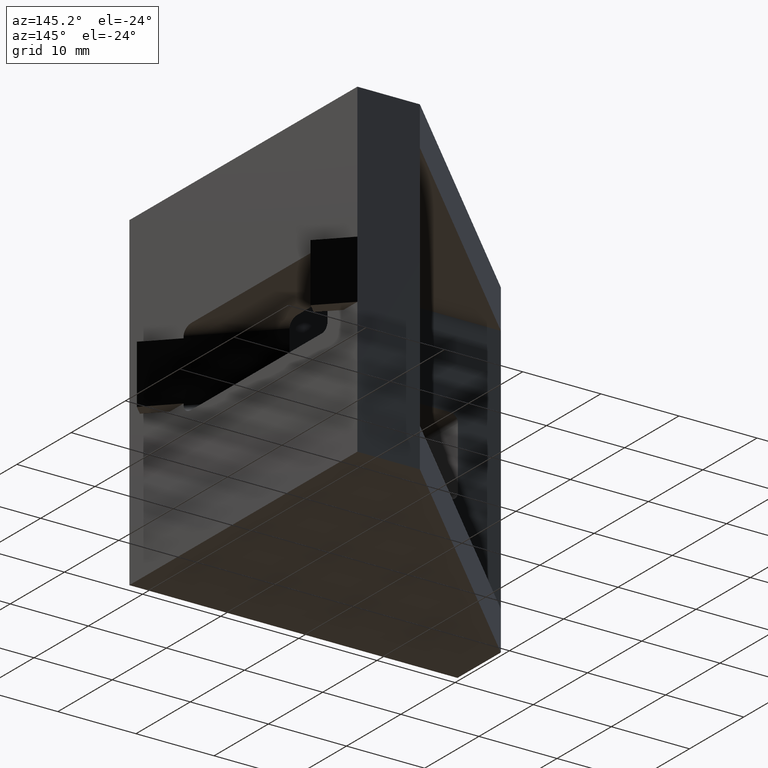
[diagram: clean part render]
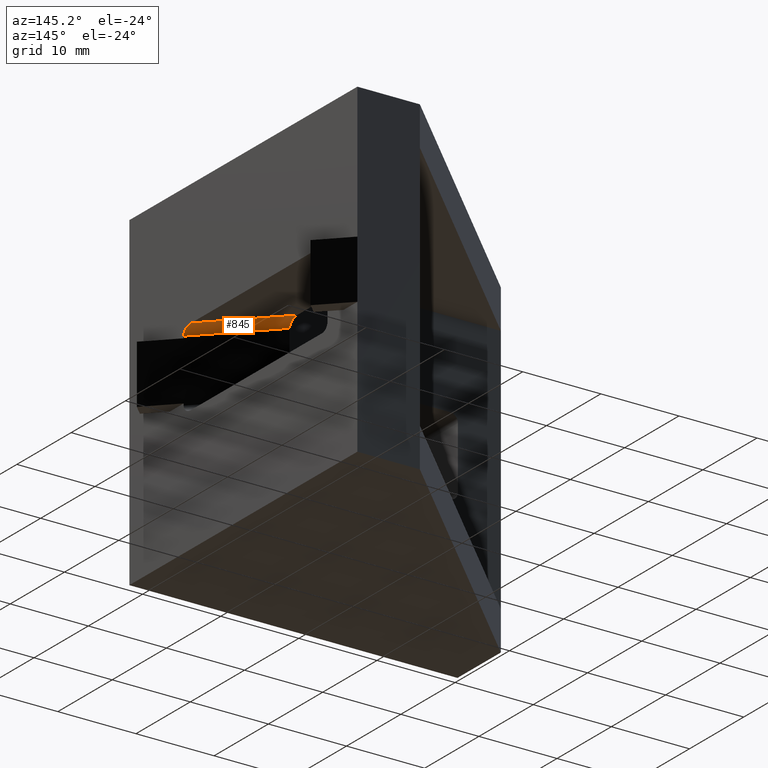
[diagram: same view with one face highlighted and labeled with its STEP entity id]
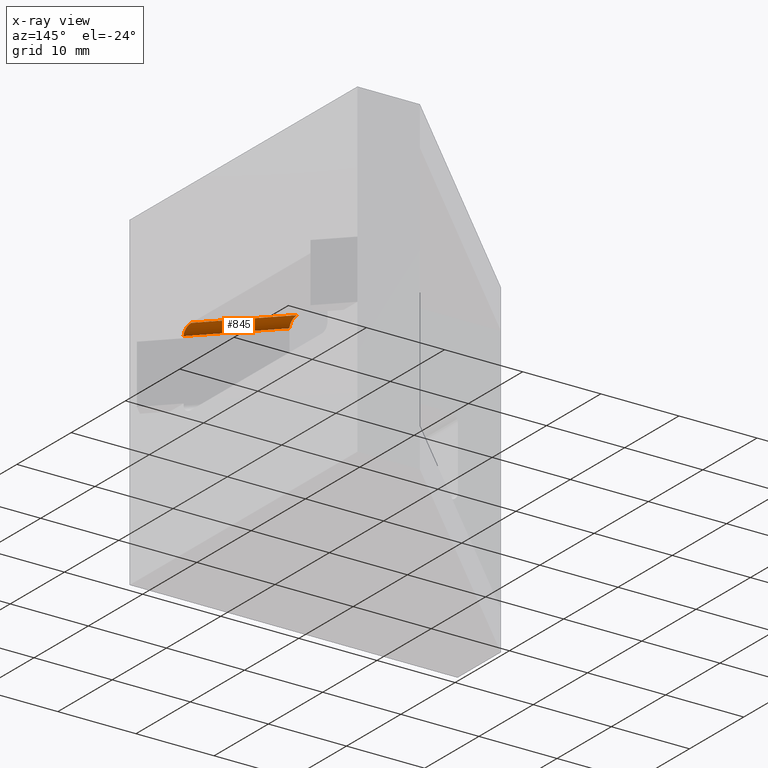
[diagram: x-ray of the same camera — body ghosted, the highlighted face saturated]
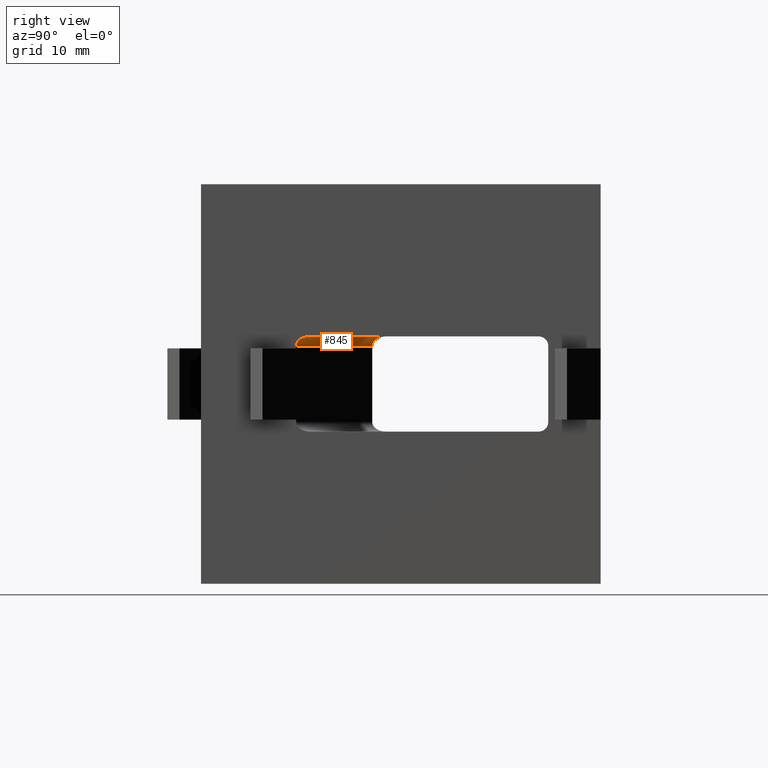
[diagram: same view with one face highlighted and labeled with its STEP entity id]
A machine part, auxiliary view. The second image highlights one B-rep face of the part: STEP entity #845.
The next image is the same camera in x-ray: the body ghosted, the highlighted face saturated — about 0% of this face is hidden behind the body in this view.
A second angle (right view) of the same face is appended — the face is thin or edge-on in the first view.
In plain terms, the highlighted cylindrical surface (edge-blend (fillet) strip) has radius 1 mm, axis along (0.7071, -0.7071, 0).
Its self-contained STEP definition (entity closure, byte-faithful):
#65=FACE_OUTER_BOUND('',#111,.T.);
#111=EDGE_LOOP('',(#589,#590,#591,#592));
#161=LINE('',#1195,#269);
#162=LINE('',#1198,#270);
#269=VECTOR('',#961,11.3137084989847);
#270=VECTOR('',#964,11.3137084989847);
#377=ELLIPSE('',#894,1.41421356237309,1.);
#378=ELLIPSE('',#895,1.41421356237309,1.);
#385=VERTEX_POINT('',#1191);
#386=VERTEX_POINT('',#1192);
#387=VERTEX_POINT('',#1194);
#388=VERTEX_POINT('',#1196);
#465=EDGE_CURVE('',#385,#386,#377,.T.);
#466=EDGE_CURVE('',#386,#387,#161,.T.);
#467=EDGE_CURVE('',#387,#388,#378,.T.);
#468=EDGE_CURVE('',#388,#385,#162,.T.);
#589=ORIENTED_EDGE('',*,*,#465,.T.);
#590=ORIENTED_EDGE('',*,*,#466,.T.);
#591=ORIENTED_EDGE('',*,*,#467,.T.);
#592=ORIENTED_EDGE('',*,*,#468,.T.);
#837=CYLINDRICAL_SURFACE('',#893,1.);
#845=ADVANCED_FACE('',(#65),#837,.F.);
#893=AXIS2_PLACEMENT_3D('',#1190,#957,#958);
#894=AXIS2_PLACEMENT_3D('',#1193,#959,#960);
#895=AXIS2_PLACEMENT_3D('',#1197,#962,#963);
#957=DIRECTION('center_axis',(0.707106781186549,-0.707106781186546,9.33568488947107E-16));
#958=DIRECTION('ref_axis',(-0.499999999999999,-0.500000000000001,0.707106781186548));
#959=DIRECTION('center_axis',(-1.,-4.57150657198594E-16,0.));
#960=DIRECTION('ref_axis',(4.85722573273507E-16,-1.,1.57009245868378E-15));
#961=DIRECTION('',(0.707106781186549,-0.707106781186546,9.33568488947107E-16));
#962=DIRECTION('center_axis',(1.,0.,0.));
#963=DIRECTION('ref_axis',(0.,-1.,1.42289629068217E-15));
#964=DIRECTION('',(-0.707106781186549,0.707106781186546,-9.33568488947107E-16));
#1190=CARTESIAN_POINT('Origin',(9.08210678118654,2.33210678118651,3.99999999999999));
#1191=CARTESIAN_POINT('',(13.,-3.,4.));
#1192=CARTESIAN_POINT('',(13.,-1.58578643762693,5.));
#1193=CARTESIAN_POINT('Origin',(13.,-1.58578643762694,4.));
#1194=CARTESIAN_POINT('',(21.,-9.58578643762689,5.));
#1195=CARTESIAN_POINT('',(9.08210678118654,2.33210678118651,4.99999999999999));
#1196=CARTESIAN_POINT('',(21.,-11.,4.00000000000001));
#1197=CARTESIAN_POINT('Origin',(21.,-9.58578643762689,4.00000000000001));
#1198=CARTESIAN_POINT('',(8.375,1.62499999999996,3.99999999999999));